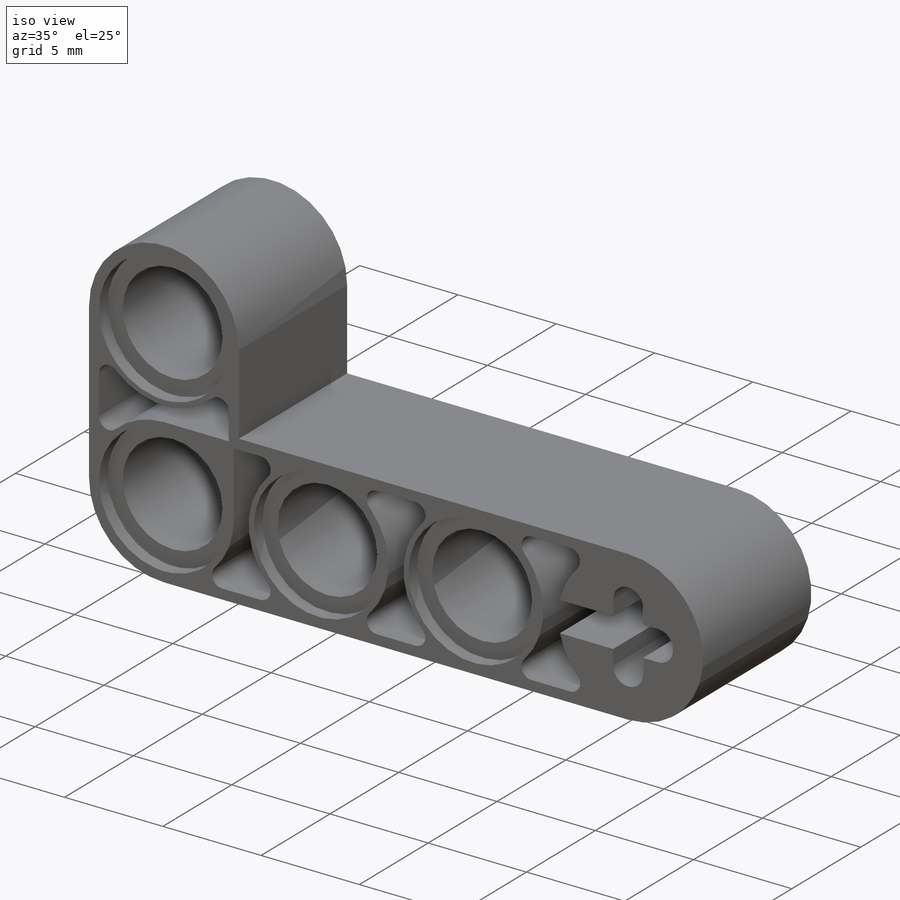
[diagram: iso view]
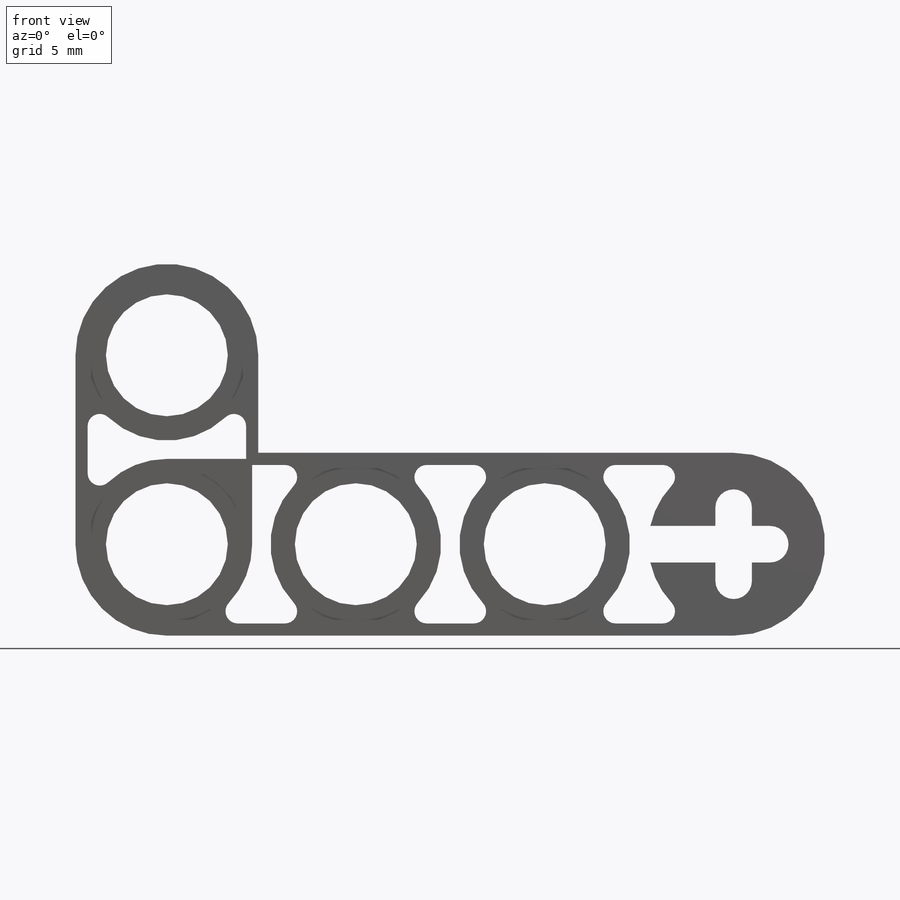
[diagram: front view]
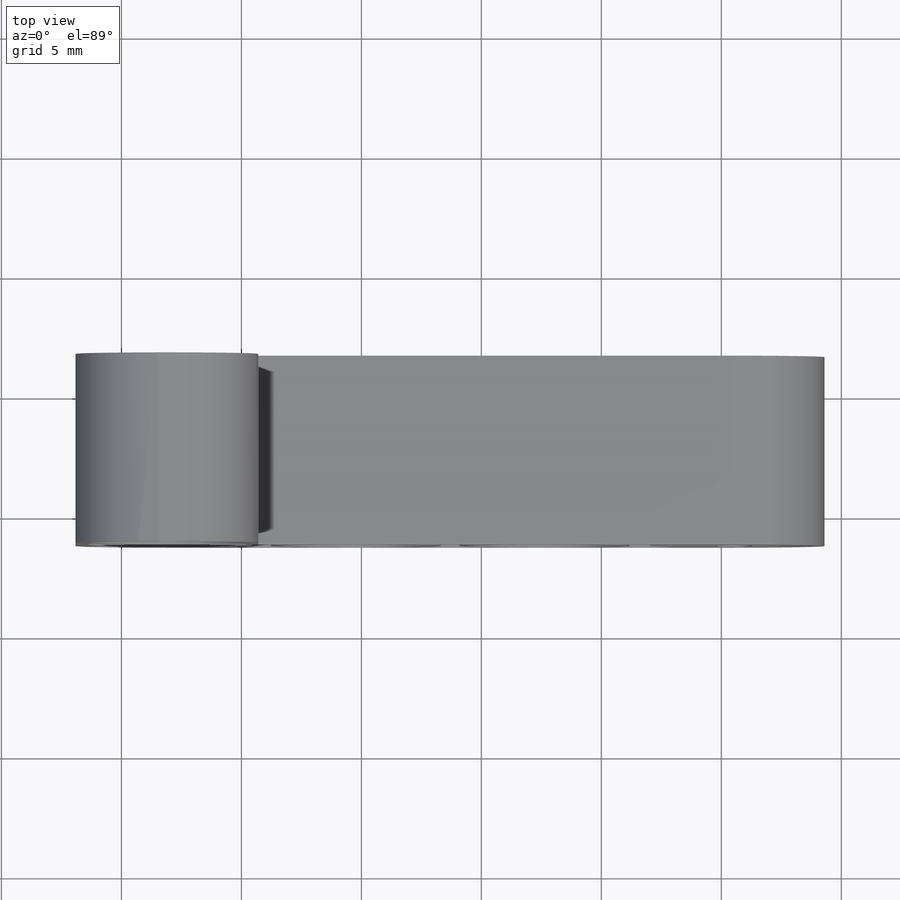
[diagram: top view]
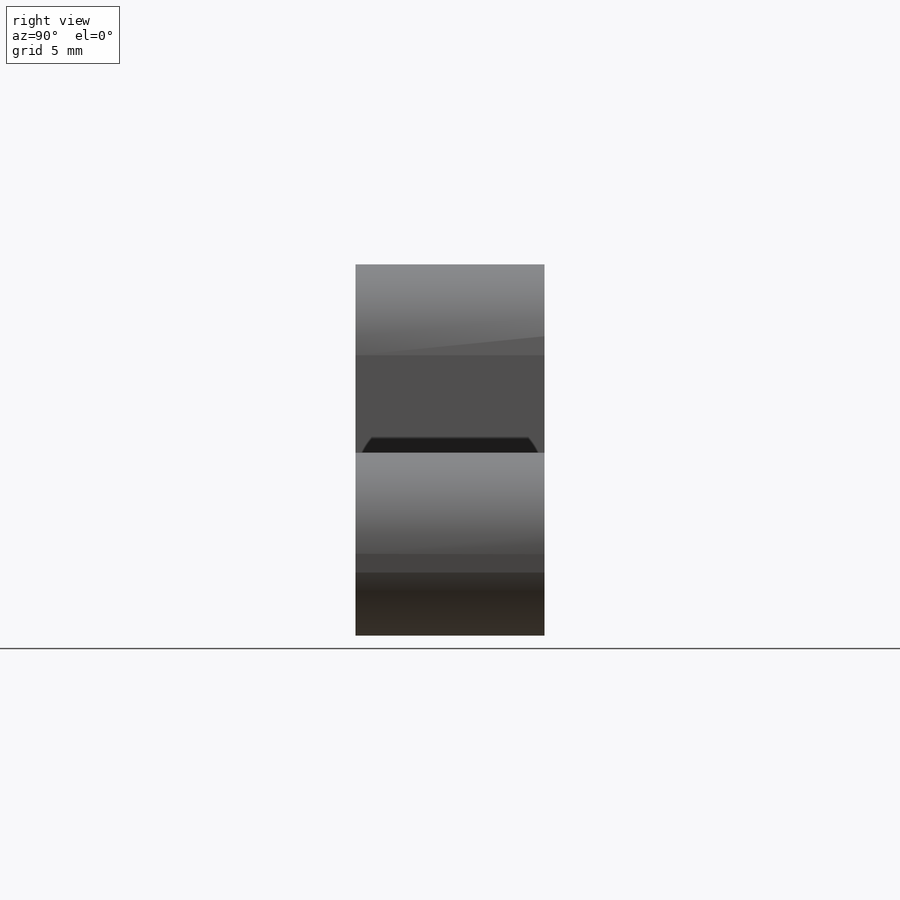
[diagram: right view]
SOLIDWORKS PART (.sldprt)
format: sldprt  version: not decoded by parser v0  size: 537,600 bytes
history: native  units: mm
features: plane x5, sketch x5, move_body x2, boolean_combine x2, extrude x2, cut_extrude x2, material x1 + 2 further entries (+21 scaffold rows collapsed; 8 parser-record rows omitted)
feature tree (50):
  scaffold x21  (default folders/planes/origin — collapsed)
  material  "PVC Rigid"
  plane  "Front Plane-LTemplate"
  plane  "Top Plane-LTemplate"
  plane  "Right Plane-LTemplate"
  plane  "Plane2-LTemplate"
  plane  "Plane3-LTemplate"
  "LTemplate"
  parser-record x8  (decoder bookkeeping rows leaked as tree rows — omitted from the tree; the rows remain in map.json)
  move_body  "Body-Move/Copy15"
  boolean_combine  "Combine1"
  sketch  "Sketch1"  dims[c1.D2=3.937mm c1.D3=~3.239611mm c1.D1=7.874mm c2.D2=7.874mm]
  "TwoStraight"
  extrude  "Boss-Extrude1"  Depth=7.874mm
  move_body  "Body-Move/Copy18"
  boolean_combine  "Combine2"
  sketch  "Sketch4"  dims[D1=2.0]
  cut_extrude  "Cut-Extrude3"  Depth=7.874mm
  sketch  "Sketch6"
  cut_extrude  "Cut-Extrude5"  Depth=7.874mm
  sketch  "Sketch8"
  extrude  "Boss-Extrude3"  Depth=7.874mm
  sketch  "Sketch7"
decode coverage: 6 of 13 modeling features carry decoded parameters; 2 rows unclassified (native names shown)
note: ~ marks probable driven/reference dimensions
note: suppression state not decoded; provenance and decode notes live in map.json
